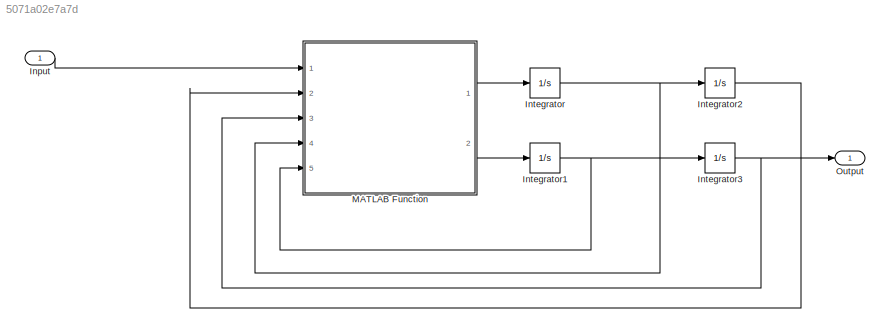
MODEL slx_5071a02e7a7d
KIND model
CONFIG AbsTol = auto
CONFIG EnableMultiTasking = off
CONFIG FixedStep = auto
CONFIG MaxStep = auto
CONFIG MinStep = auto
CONFIG RelTol = 1e-3
CONFIG SampleTimeConstraint = Unconstrained
CONFIG SolverName = VariableStepAuto
CONFIG StartTime = 0.0
CONFIG StopTime = 10.0
BLOCK [Inport] Input
BLOCK [Integrator] Integrator
  Ports = [1, 1]
BLOCK [Integrator] Integrator1
  Ports = [1, 1]
BLOCK [Integrator] Integrator2
  Ports = [1, 1]
BLOCK [Integrator] Integrator3
  Ports = [1, 1]
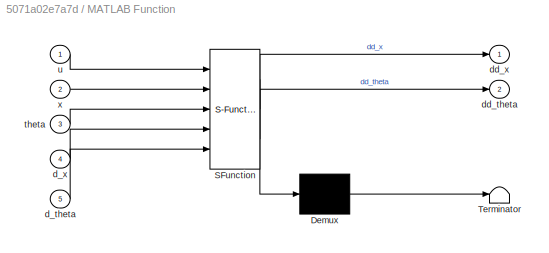
BLOCK [SubSystem] MATLAB Function
  ErrorFcn = Stateflow.Translate.translate
  PermitHierarchicalResolution = ExplicitOnly
  Ports = [5, 2]
  RequestExecContextInheritance = off
  SFBlockType = MATLAB Function
  TreatAsAtomicUnit = on
BLOCK [Demux] MATLAB Function/ Demux 
  Outputs = 1
  Ports = [1, 1]
BLOCK [S-Function] MATLAB Function/ SFunction 
  EnableBusSupport = on
  FunctionName = sf_sfun
  PortCounts = [5 3]
  Ports = [5, 3]
  SFcnIsStateOwnerBlock = off
  SFunctionDeploymentMode = off
  Tag = Stateflow S-Function 2
BLOCK [Terminator] MATLAB Function/ Terminator 
BLOCK [Inport] MATLAB Function/d_theta
  Port = 5
BLOCK [Inport] MATLAB Function/d_x
  Port = 4
BLOCK [Outport] MATLAB Function/dd_theta
  Port = 2
BLOCK [Outport] MATLAB Function/dd_x
BLOCK [Inport] MATLAB Function/theta
  Port = 3
BLOCK [Inport] MATLAB Function/u
BLOCK [Inport] MATLAB Function/x
  Port = 2
BLOCK [Outport] Output
LINE Input:1 -> MATLAB Function:1
NET Integrator1:1 -> Integrator3:1, MATLAB Function:5
LINE Integrator2:1 -> MATLAB Function:2
NET Integrator3:1 -> MATLAB Function:3, Output:1
NET Integrator:1 -> Integrator2:1, MATLAB Function:4
LINE MATLAB Function:1 -> Integrator:1
LINE MATLAB Function:2 -> Integrator1:1
note: NET lines group one-source signal fan-out (src -> all destinations, sorted); 1:1 wires keep LINE
CHART MATLAB Function states=1 transitions=1
  STATE_LABEL 'eML_blk_kernel()'
  STATE_LABEL 'SCRIPT:\nfunction [dd_x, dd_theta] = fcn(u, x, theta,  d_x, d_theta)\n\n    m = 1.5;          %Masa corpului\n    g = 9.81;         %Acceleratia gravitationala\n    zeta = 0.6;      %Coeficient de amortizare\n    k = 1.5;          %Constanta elastica\n    l0 = 0.5;         %Lungimea initiala a resortului\n    \n    %Ecuatiile\n    dd_x = (l0+x)*(d_theta)*(d_theta) - (k/m)*x + g*cos(theta) - zeta*d_x;\n    dd...<+100ch>'
CHART  states=0 transitions=0
